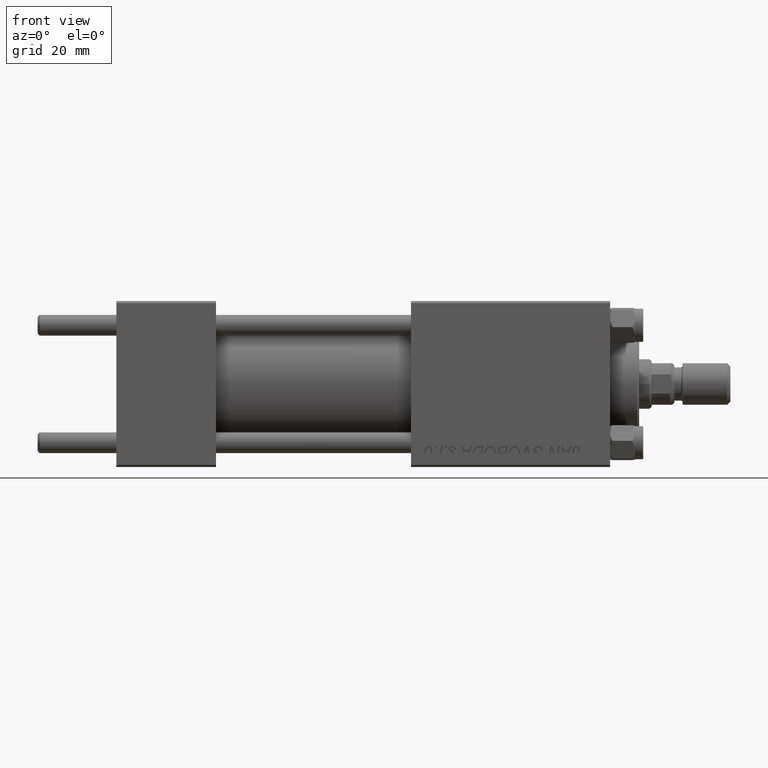
[diagram: clean part render]
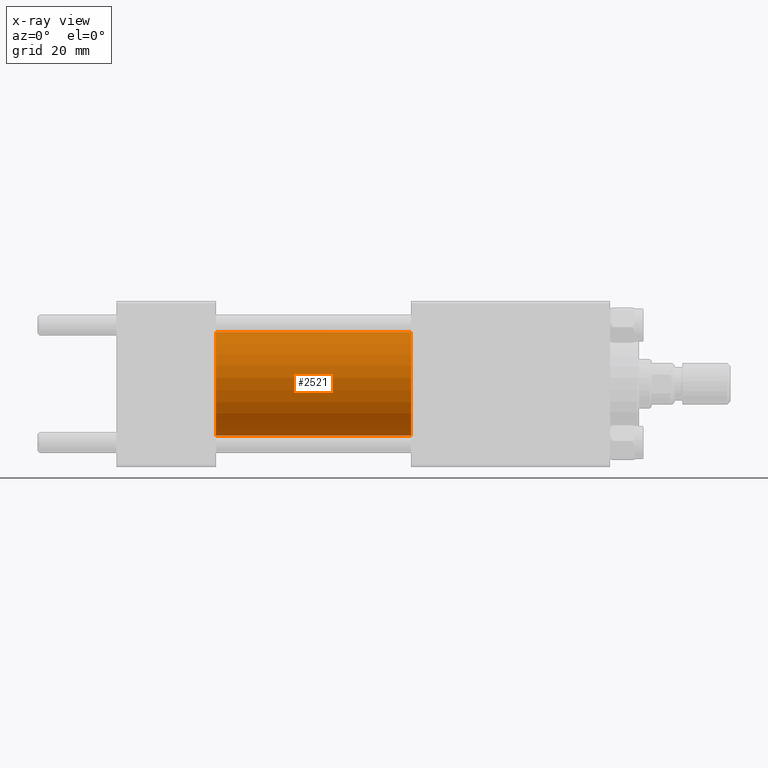
[diagram: x-ray — body ghosted, one internal face saturated and labeled with its STEP entity id]
A machine part, front view, then the same camera in x-ray: the body is ghosted and one INTERNAL B-rep face — a face not visible from any outside direction — is saturated and labeled: STEP entity #2521.
In plain terms, the highlighted cylindrical surface (partial cylindrical patch) has radius 12.5 mm, axis along (-1, -0, -0).
Its self-contained STEP definition (entity closure, byte-faithful):
#23 = DIRECTION ( 'NONE',  ( 0.000000000000000000, 0.000000000000000000, -1.000000000000000000 ) ) ;
#717 = ORIENTED_EDGE ( 'NONE', *, *, #27875, .F. ) ;
#2521 = ADVANCED_FACE ( 'NONE', ( #14032 ), #10459, .F. ) ;
#2709 = CIRCLE ( 'NONE', #31204, 12.49999999999999645 ) ;
#2796 = CARTESIAN_POINT ( 'NONE',  ( 71.00000000000001421, 0.000000000000000000, 0.000000000000000000 ) ) ;
#3920 = CARTESIAN_POINT ( 'NONE',  ( 24.00000000000000000, 0.000000000000000000, 0.000000000000000000 ) ) ;
#8586 = CARTESIAN_POINT ( 'NONE',  ( 71.00000000000001421, 0.000000000000000000, 12.49999999999999645 ) ) ;
#10202 = DIRECTION ( 'NONE',  ( -1.000000000000000000, -0.000000000000000000, -0.000000000000000000 ) ) ;
#10459 = CYLINDRICAL_SURFACE ( 'NONE', #35521, 12.49999999999999645 ) ;
#10590 = AXIS2_PLACEMENT_3D ( 'NONE', #3920, #46721, #27368 ) ;
#11581 = LINE ( 'NONE', #45973, #18584 ) ;
#12290 = CARTESIAN_POINT ( 'NONE',  ( 71.00000000000001421, 0.000000000000000000, 12.49999999999999645 ) ) ;
#13546 = VERTEX_POINT ( 'NONE', #12290 ) ;
#14032 = FACE_OUTER_BOUND ( 'NONE', #18098, .T. ) ;
#14277 = VERTEX_POINT ( 'NONE', #47744 ) ;
#18098 = EDGE_LOOP ( 'NONE', ( #44444, #29831, #23650, #717 ) ) ;
#18360 = DIRECTION ( 'NONE',  ( 0.000000000000000000, 0.000000000000000000, 1.000000000000000000 ) ) ;
#18584 = VECTOR ( 'NONE', #22560, 1000.000000000000000 ) ;
#20605 = EDGE_CURVE ( 'NONE', #27279, #26103, #47205, .T. ) ;
#22560 = DIRECTION ( 'NONE',  ( -1.000000000000000000, -0.000000000000000000, -0.000000000000000000 ) ) ;
#23650 = ORIENTED_EDGE ( 'NONE', *, *, #20605, .F. ) ;
#23990 = DIRECTION ( 'NONE',  ( 1.000000000000000000, 0.000000000000000000, 0.000000000000000000 ) ) ;
#26103 = VERTEX_POINT ( 'NONE', #44224 ) ;
#27279 = VERTEX_POINT ( 'NONE', #27387 ) ;
#27368 = DIRECTION ( 'NONE',  ( 0.000000000000000000, 0.000000000000000000, -1.000000000000000000 ) ) ;
#27387 = CARTESIAN_POINT ( 'NONE',  ( 24.00000000000000000, 0.000000000000000000, 12.49999999999999645 ) ) ;
#27801 = CARTESIAN_POINT ( 'NONE',  ( 71.00000000000001421, 0.000000000000000000, 0.000000000000000000 ) ) ;
#27875 = EDGE_CURVE ( 'NONE', #13546, #27279, #43484, .T. ) ;
#29831 = ORIENTED_EDGE ( 'NONE', *, *, #46746, .T. ) ;
#31204 = AXIS2_PLACEMENT_3D ( 'NONE', #27801, #23990, #23 ) ;
#35521 = AXIS2_PLACEMENT_3D ( 'NONE', #2796, #10202, #18360 ) ;
#43484 = LINE ( 'NONE', #8586, #49791 ) ;
#44224 = CARTESIAN_POINT ( 'NONE',  ( 24.00000000000000000, 1.530808498934191127E-15, -12.49999999999999645 ) ) ;
#44444 = ORIENTED_EDGE ( 'NONE', *, *, #50312, .T. ) ;
#45973 = CARTESIAN_POINT ( 'NONE',  ( 71.00000000000001421, 1.530808498934191127E-15, -12.49999999999999645 ) ) ;
#46721 = DIRECTION ( 'NONE',  ( 1.000000000000000000, 0.000000000000000000, 0.000000000000000000 ) ) ;
#46746 = EDGE_CURVE ( 'NONE', #14277, #26103, #11581, .T. ) ;
#47205 = CIRCLE ( 'NONE', #10590, 12.49999999999999645 ) ;
#47744 = CARTESIAN_POINT ( 'NONE',  ( 71.00000000000001421, 1.530808498934191127E-15, -12.49999999999999645 ) ) ;
#47804 = DIRECTION ( 'NONE',  ( -1.000000000000000000, -0.000000000000000000, -0.000000000000000000 ) ) ;
#49791 = VECTOR ( 'NONE', #47804, 1000.000000000000000 ) ;
#50312 = EDGE_CURVE ( 'NONE', #13546, #14277, #2709, .T. ) ;